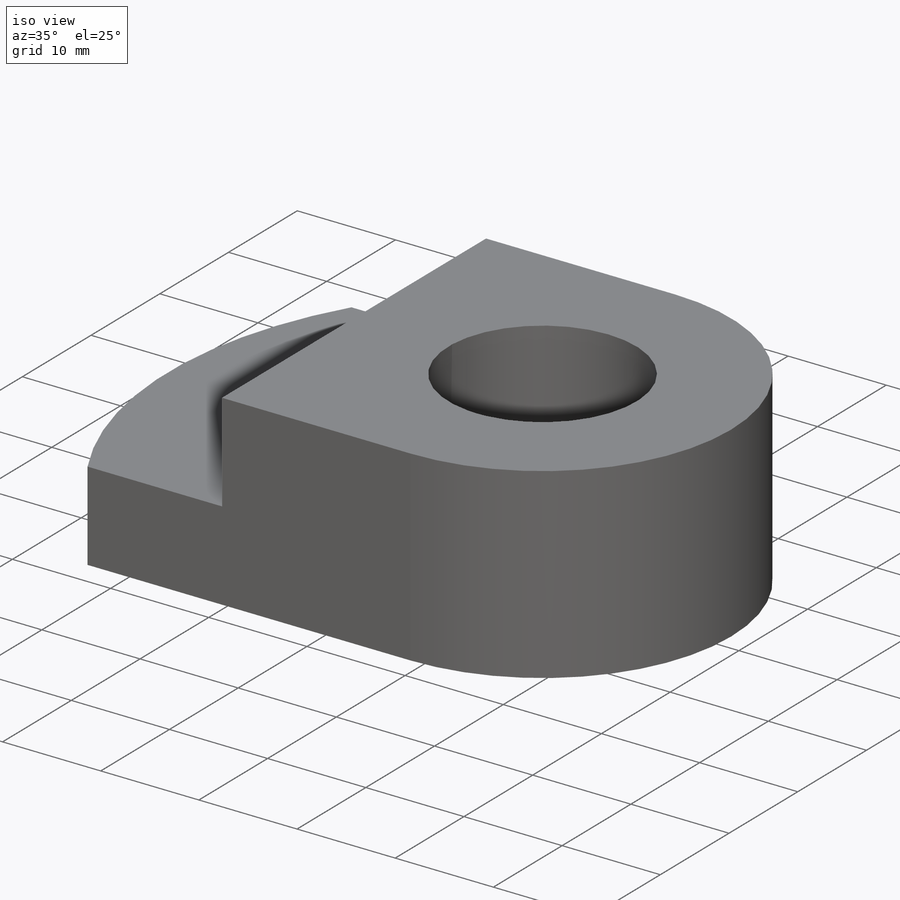
[diagram: iso view]
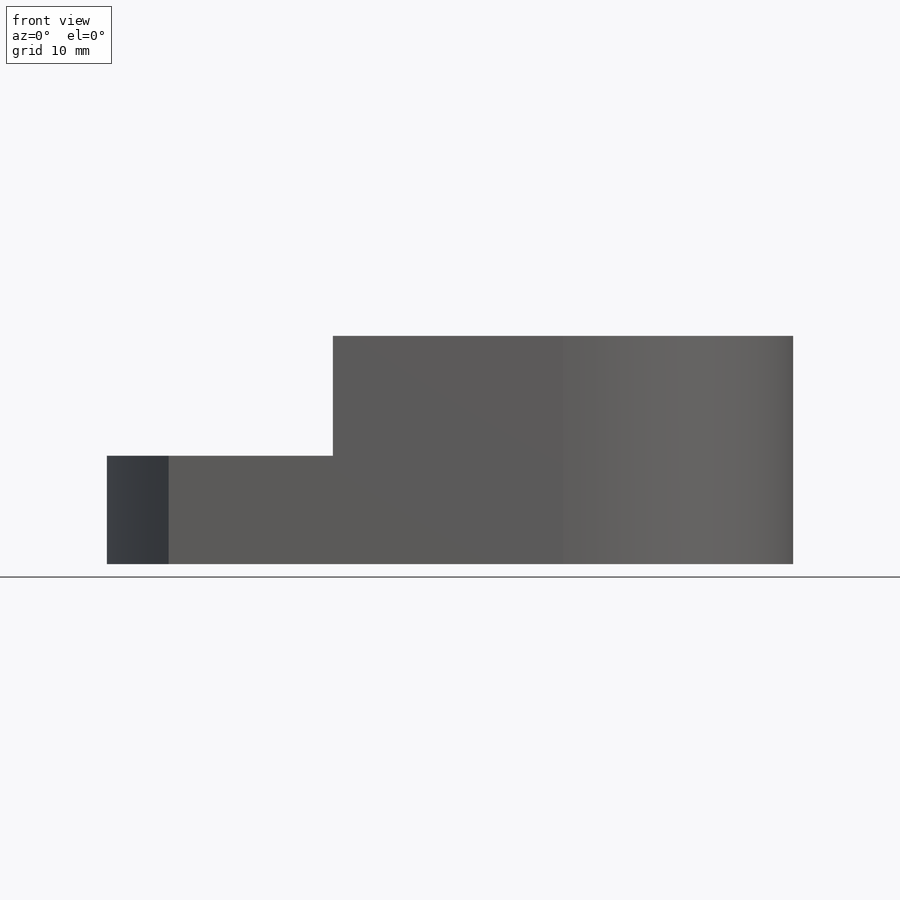
[diagram: front view]
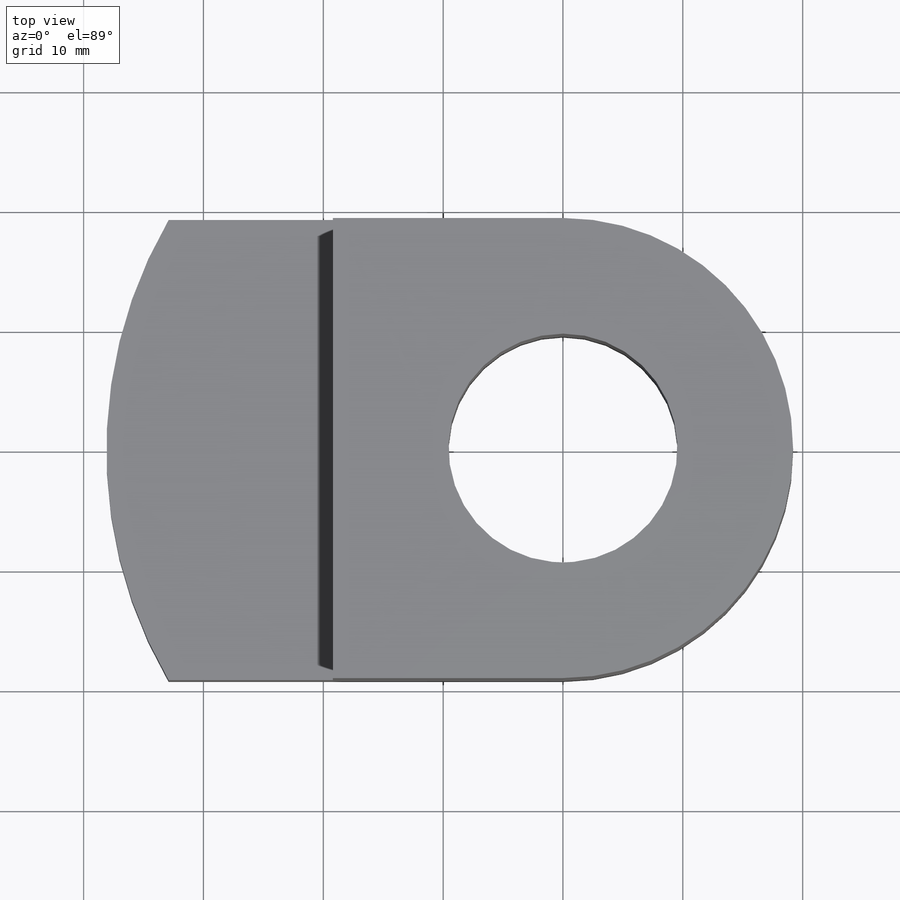
[diagram: top view]
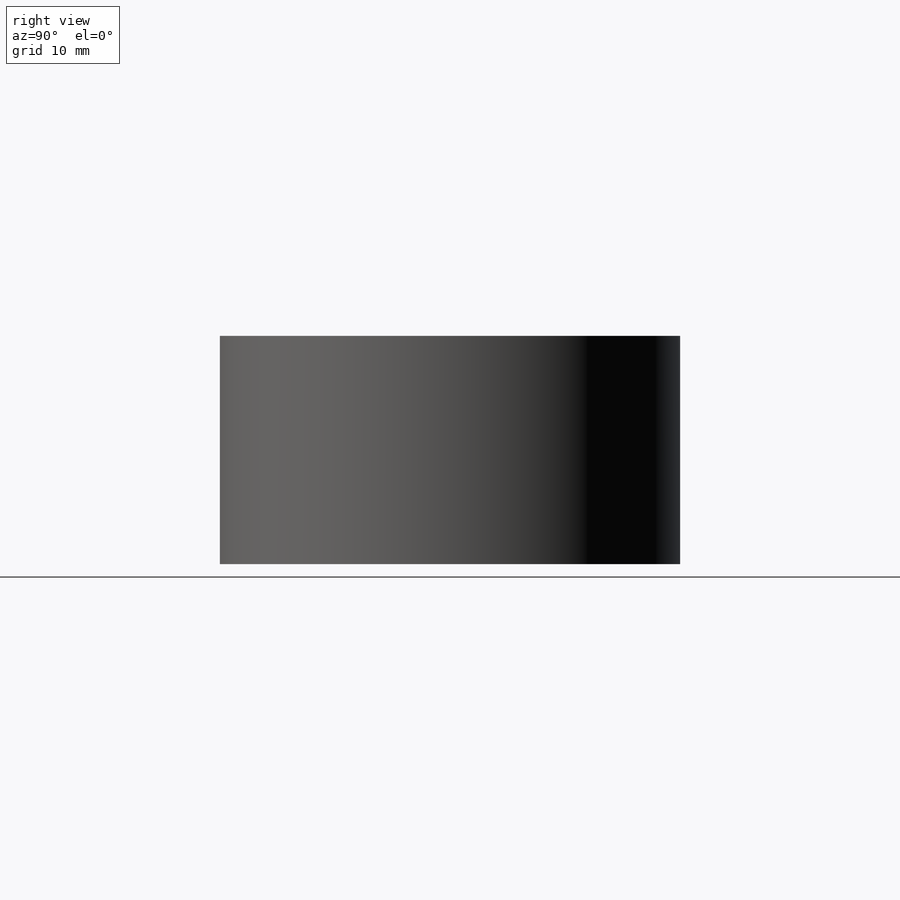
[diagram: right view]
SOLIDWORKS PART (.sldprt)
format: sldprt  version: not decoded by parser v0  size: 184,832 bytes
history: native  units: mm
features: sketch x6, cut_extrude x4, material x1, extrude x1, plane x1 (+13 scaffold rows collapsed)
feature tree (26):
  scaffold x13  (default folders/planes/origin — collapsed)
  material  "Gray Cast Iron"
  sketch  "Sketch1"  dims[D1=76.2mm]
  extrude  "Boss-Extrude1"  Depth=38.1mm
  plane  "Plane1"
  sketch  "Sketch2"
  cut_extrude  "Cut-Extrude1"  Depth=144.78mm
  sketch  "Sketch3"  dims[D1=~20.41037mm]
  cut_extrude  "Cut-Extrude2"  Depth=20.32mm
  sketch  "Sketch4"
  sketch  "Sketch5"  dims[D1=~35.09074mm]
  cut_extrude  "Cut-Extrude4"  Depth=53.594mm
  sketch  "Sketch6"
  cut_extrude  "Cut-Extrude5"  Depth=10mm
decode coverage: 8 of 11 modeling features carry decoded parameters
note: ~ marks probable driven/reference dimensions
note: suppression state not decoded; provenance and decode notes live in map.json
